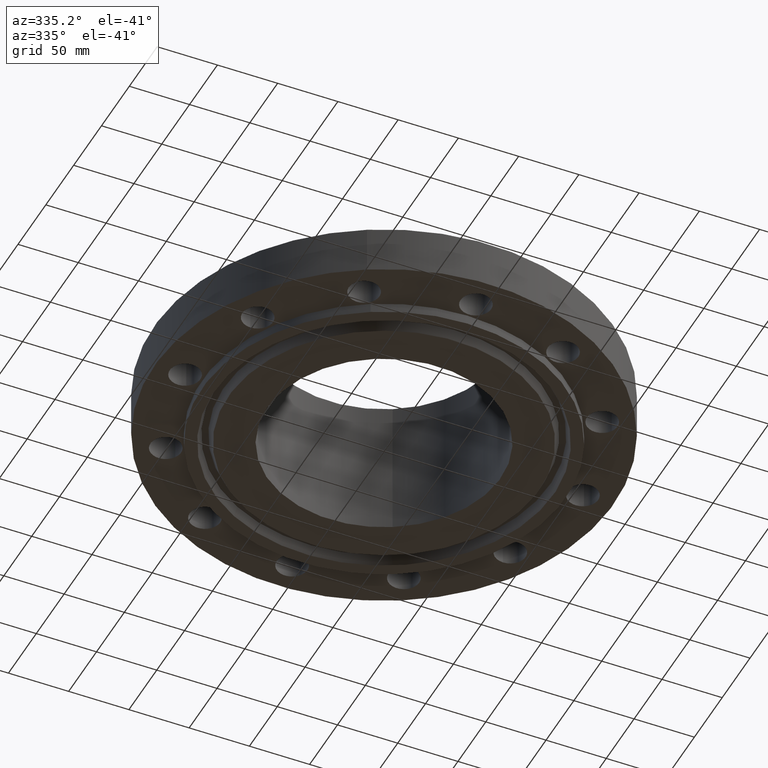
[diagram: clean part render]
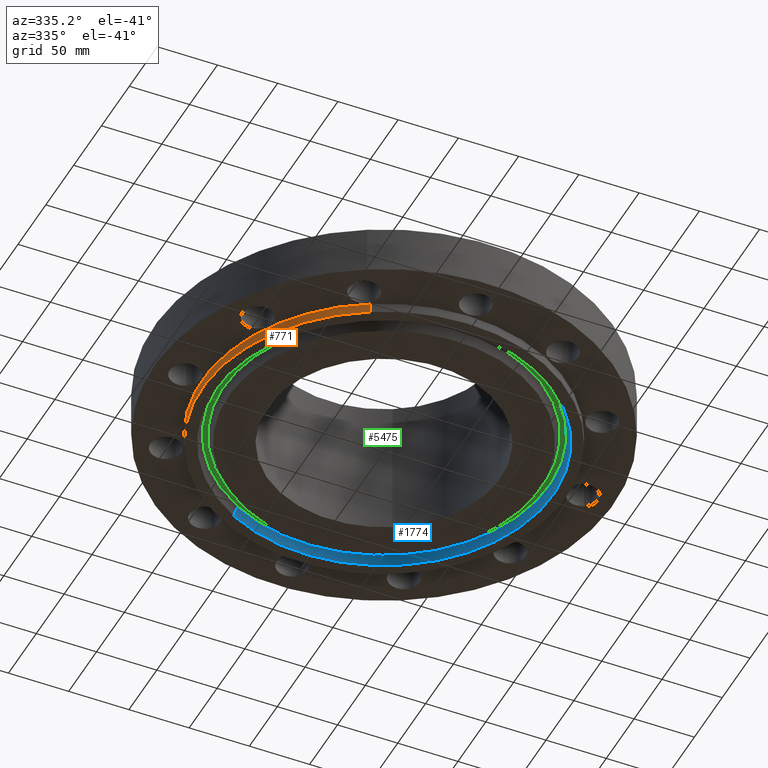
[diagram: same view with three faces highlighted in distinct colors, each labeled with its STEP entity id]
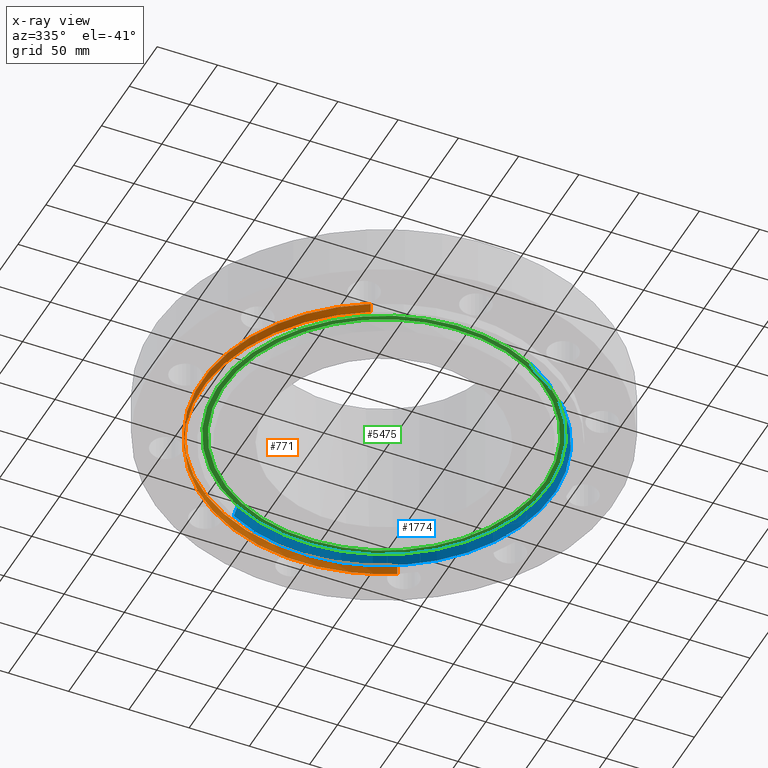
[diagram: x-ray of the same camera — body ghosted, the three highlighted faces saturated]
A machine part, auxiliary view with three faces highlighted in distinct colors.
The next image is the same camera in x-ray (body ghosted, the three faces saturated) — at least one of them is partly hidden behind the body in this view.
Their STEP definitions:

[orange] entity #771 — the highlighted cylindrical surface (partial cylindrical patch) has radius 150.812 mm, axis along (0, 0, -1).
#174=AXIS2_PLACEMENT_3D('Circle Axis2P3D',#172,#173,$) ;
#746=AXIS2_PLACEMENT_3D('Cylinder Axis2P3D',#743,#744,#745) ;
#167=CARTESIAN_POINT('Vertex',(2.84658913547,5.21064646124,-1.37020054096E-011)) ;
#169=CARTESIAN_POINT('Vertex',(-2.84658913547,-5.21064646124,-1.37020054096E-011)) ;
#172=CARTESIAN_POINT('Axis2P3D Location',(2.23792987641E-015,2.00014982704E-011,0.)) ;
#714=CARTESIAN_POINT('Vertex',(2.84658913547,5.21064646124,-0.312999999971)) ;
#716=CARTESIAN_POINT('Vertex',(-2.84658913545,-5.21064646124,-0.313000000001)) ;
#719=CARTESIAN_POINT('Line Origine',(2.84658913547,5.21064646124,-0.156499999992)) ;
#724=CARTESIAN_POINT('Line Origine',(-2.84658913547,-5.21064646124,-0.156499999992)) ;
#743=CARTESIAN_POINT('Axis2P3D Location',(0.,0.,2.00350000001)) ;
#749=CARTESIAN_POINT('Control Point',(-2.84658913547,-5.21064646124,-0.313000000001)) ;
#750=CARTESIAN_POINT('Control Point',(-3.66507556763,-4.76350528545,-0.312999999999)) ;
#751=CARTESIAN_POINT('Control Point',(-4.39576603522,-4.15565467452,-0.312999999998)) ;
#752=CARTESIAN_POINT('Control Point',(-4.99644457689,-3.40995108474,-0.312999999996)) ;
#753=CARTESIAN_POINT('Control Point',(-5.87304578135,-1.72319857565,-0.312999999993)) ;
#754=CARTESIAN_POINT('Control Point',(-6.04676757263,0.169784371394,-0.31299999999)) ;
#755=CARTESIAN_POINT('Control Point',(-5.94421937768,1.1218203066,-0.312999999989)) ;
#756=CARTESIAN_POINT('Control Point',(-5.37135589639,2.93438510003,-0.312999999986)) ;
#757=CARTESIAN_POINT('Control Point',(-4.15565467452,4.39576603522,-0.312999999983)) ;
#758=CARTESIAN_POINT('Control Point',(-3.40995108474,4.99644457689,-0.312999999981)) ;
#759=CARTESIAN_POINT('Control Point',(-1.72319857566,5.87304578135,-0.312999999978)) ;
#760=CARTESIAN_POINT('Control Point',(0.169784371392,6.04676757263,-0.312999999975)) ;
#761=CARTESIAN_POINT('Control Point',(1.1218203066,5.94421937768,-0.312999999974)) ;
#762=CARTESIAN_POINT('Control Point',(2.02810270332,5.65778763703,-0.312999999972)) ;
#763=CARTESIAN_POINT('Control Point',(2.84658913547,5.21064646124,-0.312999999971)) ;
#173=DIRECTION('Axis2P3D Direction',(0.,0.,-0.0393700787402)) ;
#720=DIRECTION('Vector Direction',(0.,0.,-0.0393700787402)) ;
#725=DIRECTION('Vector Direction',(0.,0.,-0.0393700787402)) ;
#744=DIRECTION('Axis2P3D Direction',(0.,0.,-0.0393700787402)) ;
#745=DIRECTION('Axis2P3D XDirection',(-0.0188750212049,-0.0345504945626,0.)) ;
#721=VECTOR('Line Direction',#720,0.0393700787402) ;
#726=VECTOR('Line Direction',#725,0.0393700787402) ;
#766=ORIENTED_EDGE('',*,*,#764,.F.) ;
#767=ORIENTED_EDGE('',*,*,#728,.T.) ;
#768=ORIENTED_EDGE('',*,*,#176,.T.) ;
#769=ORIENTED_EDGE('',*,*,#723,.F.) ;
#771=ADVANCED_FACE('PartBody',(#770),#747,.T.) ;
#748=B_SPLINE_CURVE_WITH_KNOTS('',5,(#749,#750,#751,#752,#753,#754,#755,#756,#757,#758,#759,#760,#761,#762,#763),.UNSPECIFIED.,.F.,.U.,(6,3,3,3,6),(-236.895721036,-118.447860518,-1.42108547152E-014,118.447860518,236.895721036),.UNSPECIFIED.) ;
#175=CIRCLE('generated circle',#174,5.93750000001) ;
#747=CYLINDRICAL_SURFACE('generated cylinder',#746,5.93750000002) ;
#176=EDGE_CURVE('',#170,#168,#175,.T.) ;
#723=EDGE_CURVE('',#715,#168,#722,.F.) ;
#728=EDGE_CURVE('',#717,#170,#727,.F.) ;
#764=EDGE_CURVE('',#717,#715,#748,.T.) ;
#765=EDGE_LOOP('',(#766,#767,#768,#769)) ;
#770=FACE_OUTER_BOUND('',#765,.T.) ;
#722=LINE('Line',#719,#721) ;
#727=LINE('Line',#724,#726) ;
#168=VERTEX_POINT('',#167) ;
#170=VERTEX_POINT('',#169) ;
#715=VERTEX_POINT('',#714) ;
#717=VERTEX_POINT('',#716) ;

[blue] entity #1774 — the highlighted conical surface has half-angle 23 deg.
#1464=AXIS2_PLACEMENT_3D('Circle Axis2P3D',#1462,#1463,$) ;
#1761=AXIS2_PLACEMENT_3D('Cone Axis2P3D',#1758,#1759,#1760) ;
#1765=AXIS2_PLACEMENT_3D('Circle Axis2P3D',#1763,#1764,$) ;
#1457=CARTESIAN_POINT('Vertex',(2.65937346261,-4.86795047085,-0.313000000001)) ;
#1459=CARTESIAN_POINT('Vertex',(-2.65937346261,4.86795047086,-0.313000000001)) ;
#1462=CARTESIAN_POINT('Axis2P3D Location',(-6.99353086378E-016,5.33186793055E-012,-0.313000000001)) ;
#1725=CARTESIAN_POINT('Line Origine',(-2.62944690085,4.8131702669,-0.16594366751)) ;
#1729=CARTESIAN_POINT('Vertex',(-2.59952033906,4.75839006298,-0.0188873350162)) ;
#1736=CARTESIAN_POINT('Vertex',(2.59952033905,-4.75839006298,-0.0188873350179)) ;
#1739=CARTESIAN_POINT('Line Origine',(2.62944690085,-4.8131702669,-0.16594366751)) ;
#1758=CARTESIAN_POINT('Axis2P3D Location',(0.,0.,-0.0188873350169)) ;
#1763=CARTESIAN_POINT('Axis2P3D Location',(0.,0.,-0.0188873350169)) ;
#1463=DIRECTION('Axis2P3D Direction',(0.,0.,-0.0393700787402)) ;
#1726=DIRECTION('Vector Direction',(-0.00737505833566,0.0134999537303,-0.0362403485611)) ;
#1740=DIRECTION('Vector Direction',(0.00737505833566,-0.0134999537303,-0.0362403485611)) ;
#1759=DIRECTION('Axis2P3D Direction',(-0.,-0.,-0.0393700787402)) ;
#1760=DIRECTION('Axis2P3D XDirection',(-0.0188750212049,0.0345504945626,0.)) ;
#1764=DIRECTION('Axis2P3D Direction',(-0.,0.,-0.0393700787402)) ;
#1727=VECTOR('Line Direction',#1726,0.0393700787402) ;
#1741=VECTOR('Line Direction',#1740,0.0393700787402) ;
#1769=ORIENTED_EDGE('',*,*,#1466,.T.) ;
#1770=ORIENTED_EDGE('',*,*,#1743,.T.) ;
#1771=ORIENTED_EDGE('',*,*,#1767,.T.) ;
#1772=ORIENTED_EDGE('',*,*,#1731,.F.) ;
#1774=ADVANCED_FACE('PartBody',(#1773),#1762,.F.) ;
#1465=CIRCLE('generated circle',#1464,5.54700000003) ;
#1766=CIRCLE('generated circle',#1765,5.42215658061) ;
#1762=CONICAL_SURFACE('Cone',#1761,5.42215658061,0.401425727959) ;
#1466=EDGE_CURVE('',#1460,#1458,#1465,.T.) ;
#1731=EDGE_CURVE('',#1460,#1730,#1728,.F.) ;
#1743=EDGE_CURVE('',#1458,#1737,#1742,.F.) ;
#1767=EDGE_CURVE('',#1737,#1730,#1766,.F.) ;
#1768=EDGE_LOOP('',(#1769,#1770,#1771,#1772)) ;
#1773=FACE_OUTER_BOUND('',#1768,.T.) ;
#1728=LINE('Line',#1725,#1727) ;
#1742=LINE('Line',#1739,#1741) ;
#1458=VERTEX_POINT('',#1457) ;
#1460=VERTEX_POINT('',#1459) ;
#1730=VERTEX_POINT('',#1729) ;
#1737=VERTEX_POINT('',#1736) ;

[green] entity #5475 — the highlighted planar face has unit normal (0, 0, -1).
#139=AXIS2_PLACEMENT_3D('Plane Axis2P3D',#136,#137,#138) ;
#2435=AXIS2_PLACEMENT_3D('Circle Axis2P3D',#2433,#2434,$) ;
#2466=AXIS2_PLACEMENT_3D('Circle Axis2P3D',#2464,#2465,$) ;
#5459=AXIS2_PLACEMENT_3D('Circle Axis2P3D',#5457,#5458,$) ;
#5468=AXIS2_PLACEMENT_3D('Circle Axis2P3D',#5466,#5467,$) ;
#136=CARTESIAN_POINT('Axis2P3D Location',(0.,5.93750000002,0.)) ;
#2430=CARTESIAN_POINT('Vertex',(-2.58583961947,4.73334767375,0.)) ;
#2433=CARTESIAN_POINT('Axis2P3D Location',(0.,0.,0.)) ;
#2437=CARTESIAN_POINT('Vertex',(2.58583961947,-4.73334767375,0.)) ;
#2464=CARTESIAN_POINT('Axis2P3D Location',(0.,0.,0.)) ;
#5457=CARTESIAN_POINT('Axis2P3D Location',(4.36653687836E-011,7.18823076303E-012,0.)) ;
#5461=CARTESIAN_POINT('Vertex',(2.50805672823,-4.59096704637,0.)) ;
#5463=CARTESIAN_POINT('Vertex',(-2.50805672823,4.59096704634,0.)) ;
#5466=CARTESIAN_POINT('Axis2P3D Location',(-1.28118688012E-011,-2.3666108443E-011,0.)) ;
#137=DIRECTION('Axis2P3D Direction',(0.,0.,-0.0393700787402)) ;
#138=DIRECTION('Axis2P3D XDirection',(0.0393700787402,0.,0.)) ;
#2434=DIRECTION('Axis2P3D Direction',(0.,0.,0.0393700787402)) ;
#2465=DIRECTION('Axis2P3D Direction',(0.,0.,0.0393700787402)) ;
#5458=DIRECTION('Axis2P3D Direction',(0.,0.,-0.0393700787402)) ;
#5467=DIRECTION('Axis2P3D Direction',(0.,0.,-0.0393700787402)) ;
#5454=ORIENTED_EDGE('',*,*,#2439,.F.) ;
#5455=ORIENTED_EDGE('',*,*,#2468,.F.) ;
#5472=ORIENTED_EDGE('',*,*,#5465,.T.) ;
#5473=ORIENTED_EDGE('',*,*,#5470,.T.) ;
#5474=FACE_BOUND('',#5471,.T.) ;
#5475=ADVANCED_FACE('PartBody',(#5456,#5474),#140,.T.) ;
#2436=CIRCLE('generated circle',#2435,5.39362093015) ;
#2467=CIRCLE('generated circle',#2466,5.39362093015) ;
#5460=CIRCLE('generated circle',#5459,5.23137906987) ;
#5469=CIRCLE('generated circle',#5468,5.23137906987) ;
#2439=EDGE_CURVE('',#2431,#2438,#2436,.T.) ;
#2468=EDGE_CURVE('',#2438,#2431,#2467,.T.) ;
#5465=EDGE_CURVE('',#5462,#5464,#5460,.F.) ;
#5470=EDGE_CURVE('',#5464,#5462,#5469,.F.) ;
#5453=EDGE_LOOP('',(#5454,#5455)) ;
#5471=EDGE_LOOP('',(#5472,#5473)) ;
#5456=FACE_OUTER_BOUND('',#5453,.T.) ;
#140=PLANE('',#139) ;
#2431=VERTEX_POINT('',#2430) ;
#2438=VERTEX_POINT('',#2437) ;
#5462=VERTEX_POINT('',#5461) ;
#5464=VERTEX_POINT('',#5463) ;